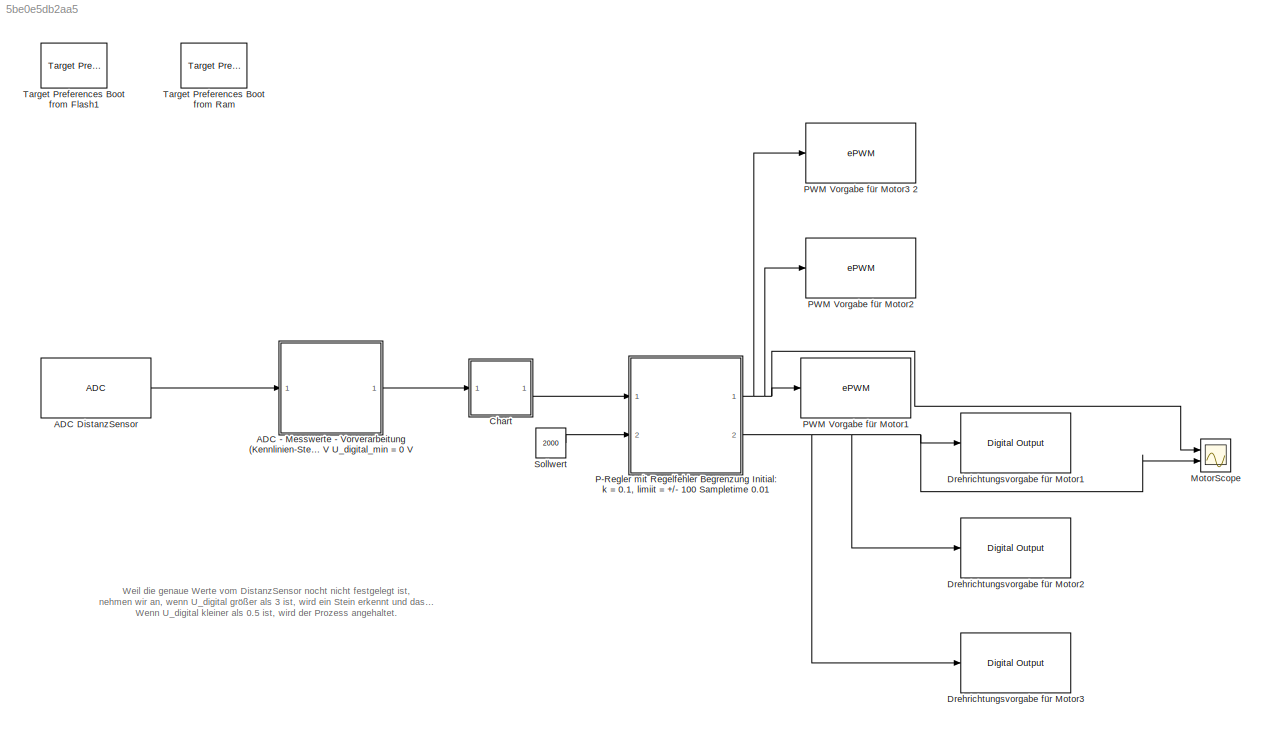
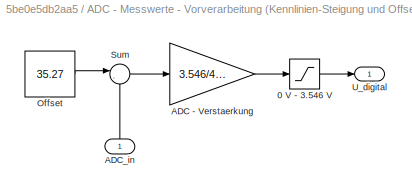
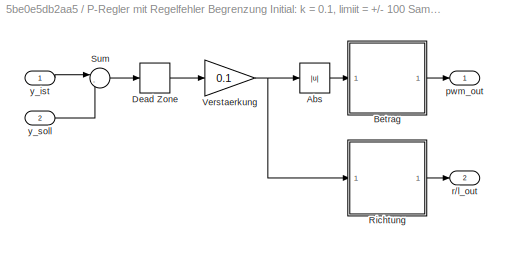
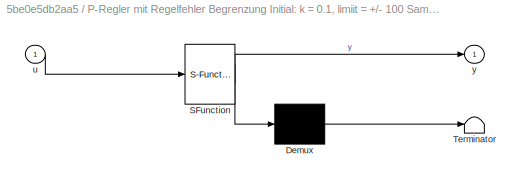
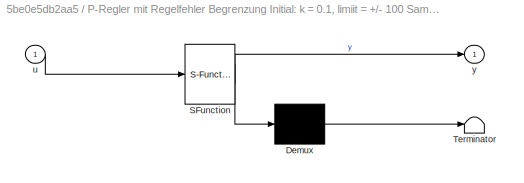
MODEL slx_5be0e5db2aa5
KIND model
BLOCK [SubSystem] ADC - Messwerte - Vorverarbeitung (Kennlinien-Steigung und Offset-Kompensation) U_digital = (ADC_in - Offset) * 3.546 V // 4096 mit U_digital_max = 3.546 V U_digital_min = 0 V
  FunctionWithSeparateData = off
  MaskHideContents = off
  MinAlgLoopOccurrences = off
  Opaque = off
  Ports = [1, 1]
  PropExecContextOutsideSubsystem = off
  RTWSystemCode = Auto
  RequestExecContextInheritance = off
BLOCK [Saturate] ADC - Messwerte - Vorverarbeitung (Kennlinien-Steigung und Offset-Kompensation) U_digital = (ADC_in - Offset) * 3.546 V // 4096 mit U_digital_max = 3.546 V U_digital_min = 0 V/0 V - 3.546 V
  InputPortMap = u0
  LowerLimit = 0
  Ports = [1, 1]
  UpperLimit = 3.546
BLOCK [Gain] ADC - Messwerte - Vorverarbeitung (Kennlinien-Steigung und Offset-Kompensation) U_digital = (ADC_in - Offset) * 3.546 V // 4096 mit U_digital_max = 3.546 V U_digital_min = 0 V/ADC - Verstaerkung
  Gain = 3.546/4096
  OutDataTypeStr = Inherit: Inherit via internal rule
  ParamDataTypeStr = Inherit: Inherit via internal rule
  SaturateOnIntegerOverflow = off
BLOCK [Inport] ADC - Messwerte - Vorverarbeitung (Kennlinien-Steigung und Offset-Kompensation) U_digital = (ADC_in - Offset) * 3.546 V // 4096 mit U_digital_max = 3.546 V U_digital_min = 0 V/ADC_in
  IconDisplay = Port number
BLOCK [Constant] ADC - Messwerte - Vorverarbeitung (Kennlinien-Steigung und Offset-Kompensation) U_digital = (ADC_in - Offset) * 3.546 V // 4096 mit U_digital_max = 3.546 V U_digital_min = 0 V/Offset
  Value = 35.27
BLOCK [Sum] ADC - Messwerte - Vorverarbeitung (Kennlinien-Steigung und Offset-Kompensation) U_digital = (ADC_in - Offset) * 3.546 V // 4096 mit U_digital_max = 3.546 V U_digital_min = 0 V/Sum
  IconShape = round
  InputSameDT = off
  Inputs = |-+
  OutDataTypeStr = Inherit: Inherit via internal rule
  Ports = [2, 1]
  SaturateOnIntegerOverflow = off
BLOCK [Outport] ADC - Messwerte - Vorverarbeitung (Kennlinien-Steigung und Offset-Kompensation) U_digital = (ADC_in - Offset) * 3.546 V // 4096 mit U_digital_max = 3.546 V U_digital_min = 0 V/U_digital
  IconDisplay = Port number
BLOCK [Reference] ADC DistanzSensor  REF=c280xlib/ADC
  Ports = [0, 1]
  SourceBlock = c280xlib/ADC
  SourceType = C280x/C2833x ADC
  Ts = 0.001
  UserDataPersistent = on
  c28xmultiPort = off
  chdma = 1
  conv0 = ADCINA0
  conv1 = ADCINA1
  conv10 = ADCINB2
  conv11 = ADCINB3
  conv12 = ADCINB4
  conv13 = ADCINB5
  conv14 = ADCINB6
  conv15 = ADCINB7
  conv2 = ADCINA2
  conv3 = ADCINA3
  conv4 = ADCINA4
  conv5 = ADCINA5
  conv6 = ADCINA6
  conv7 = ADCINA7
  conv8 = ADCINB0
  conv9 = ADCINB1
  convA0 = ADCINA0
  convA1 = ADCINA1
  convA2 = ADCINA2
  convA3 = ADCINA3
  convA4 = ADCINA4
  convA5 = ADCINA5
  convA6 = ADCINA6
  convA7 = ADCINA7
  convAB0 = ADCINA0 and ADCINB0
  convAB1 = ADCINA1 and ADCINB1
  convAB2 = ADCINA2 and ADCINB2
  convAB3 = ADCINA3 and ADCINB3
  convAB4 = ADCINA4 and ADCINB4
  convAB5 = ADCINA5 and ADCINB5
  convAB6 = ADCINA6 and ADCINB6
  convAB7 = ADCINA7 and ADCINB7
  convB0 = ADCINB0
  convB1 = ADCINB1
  convB2 = ADCINB2
  convB3 = ADCINB3
  convB4 = ADCINB4
  convB5 = ADCINB5
  convB6 = ADCINB6
  convB7 = ADCINB7
  dType = uint16
  endma = off
  numConversionsDouble = 1
  numConversionsSingle = 1
  postInterrupt = off
  sourceSOC = Software
  sourceSOC1 = Software
  sourceSOC2 = ePWMxB
  useMode = Sequential
  useModule = A
  xint2_ADCSOC = 31
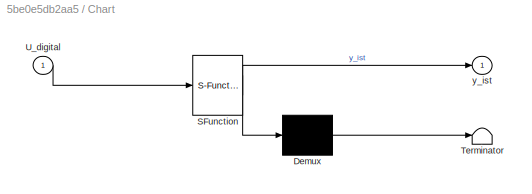
BLOCK [SubSystem] Chart
  ErrorFcn = Stateflow.Translate.translate
  FunctionWithSeparateData = off
  MaskHideContents = off
  MinAlgLoopOccurrences = off
  Opaque = off
  PermitHierarchicalResolution = ExplicitOnly
  Ports = [1, 1]
  PropExecContextOutsideSubsystem = off
  RTWSystemCode = Auto
  RequestExecContextInheritance = off
  SFBlockType = Chart
  TreatAsAtomicUnit = on
BLOCK [Demux] Chart/ Demux 
  Outputs = 1
  Ports = [1, 1]
BLOCK [S-Function] Chart/ SFunction 
  EnableBusSupport = off
  FunctionName = sf_sfun
  PortCounts = [1 2]
  Ports = [1, 2]
  Tag = Stateflow S-Function Sammeln 1
BLOCK [Terminator] Chart/ Terminator 
BLOCK [Inport] Chart/U_digital
  IconDisplay = Port number
BLOCK [Outport] Chart/y_ist
  IconDisplay = Port number
BLOCK [Reference] Drehrichtungsvorgabe für Motor1  REF=c2833xlib/Digital Output
  GPIO_BIT0_Toggle = off
  GPIO_BIT1_Toggle = off
  GPIO_BIT2_Toggle = off
  GPIO_BIT3_Toggle = off
  GPIO_BIT4_Toggle = off
  GPIO_BIT5_Toggle = off
  GPIO_BIT6_Toggle = off
  GPIO_BIT7_Toggle = off
  GPIO_Bit0 = off
  GPIO_Bit1 = off
  GPIO_Bit2 = off
  GPIO_Bit3 = off
  GPIO_Bit4 = off
  GPIO_Bit5 = on
  GPIO_Bit6 = off
  GPIO_Bit7 = off
  GPIO_Number = GPIO16~GPIO23
  Ports = [1]
  SourceBlock = c2833xlib/Digital Output
  SourceType = C2833x GPIO Digital Output
  UserDataPersistent = on
BLOCK [Reference] Drehrichtungsvorgabe für Motor2  REF=c2833xlib/Digital Output
  GPIO_BIT0_Toggle = off
  GPIO_BIT1_Toggle = off
  GPIO_BIT2_Toggle = off
  GPIO_BIT3_Toggle = off
  GPIO_BIT4_Toggle = off
  GPIO_BIT5_Toggle = off
  GPIO_BIT6_Toggle = off
  GPIO_BIT7_Toggle = off
  GPIO_Bit0 = off
  GPIO_Bit1 = off
  GPIO_Bit2 = off
  GPIO_Bit3 = off
  GPIO_Bit4 = off
  GPIO_Bit5 = on
  GPIO_Bit6 = off
  GPIO_Bit7 = off
  GPIO_Number = GPIO16~GPIO23
  Ports = [1]
  SourceBlock = c2833xlib/Digital Output
  SourceType = C2833x GPIO Digital Output
  UserDataPersistent = on
BLOCK [Reference] Drehrichtungsvorgabe für Motor3  REF=c2833xlib/Digital Output
  GPIO_BIT0_Toggle = off
  GPIO_BIT1_Toggle = off
  GPIO_BIT2_Toggle = off
  GPIO_BIT3_Toggle = off
  GPIO_BIT4_Toggle = off
  GPIO_BIT5_Toggle = off
  GPIO_BIT6_Toggle = off
  GPIO_BIT7_Toggle = off
  GPIO_Bit0 = off
  GPIO_Bit1 = off
  GPIO_Bit2 = off
  GPIO_Bit3 = off
  GPIO_Bit4 = off
  GPIO_Bit5 = on
  GPIO_Bit6 = off
  GPIO_Bit7 = off
  GPIO_Number = GPIO16~GPIO23
  Ports = [1]
  SourceBlock = c2833xlib/Digital Output
  SourceType = C2833x GPIO Digital Output
  UserDataPersistent = on
BLOCK [Scope] MotorScope
  DataFormat = StructureWithTime
  Floating = off
  NumInputPorts = 2
  Ports = [2]
  SampleTime = 0
  ShowLegends = off
  YMax = 100~5
  YMin = -5~-5
BLOCK [SubSystem] P-Regler mit Regelfehler Begrenzung Initial: k = 0.1, limiit = +//- 100 Sampletime 0.01
  FunctionWithSeparateData = off
  MaskHideContents = off
  MinAlgLoopOccurrences = off
  Opaque = off
  Ports = [2, 2]
  PropExecContextOutsideSubsystem = off
  RTWSystemCode = Auto
  RequestExecContextInheritance = off
BLOCK [Abs] P-Regler mit Regelfehler Begrenzung Initial: k = 0.1, limiit = +//- 100 Sampletime 0.01/Abs
  SampleTime = 0.01
  SaturateOnIntegerOverflow = off
BLOCK [SubSystem] P-Regler mit Regelfehler Begrenzung Initial: k = 0.1, limiit = +//- 100 Sampletime 0.01/Betrag
  ErrorFcn = Stateflow.Translate.translate
  FunctionWithSeparateData = off
  MaskHideContents = off
  MinAlgLoopOccurrences = off
  Opaque = off
  PermitHierarchicalResolution = ExplicitOnly
  Ports = [1, 1]
  PropExecContextOutsideSubsystem = off
  RTWSystemCode = Auto
  RequestExecContextInheritance = off
  SFBlockType = MATLAB Function
  SystemSampleTime = 0.01
  TreatAsAtomicUnit = on
BLOCK [Demux] P-Regler mit Regelfehler Begrenzung Initial: k = 0.1, limiit = +//- 100 Sampletime 0.01/Betrag/ Demux 
  Outputs = 1
  Ports = [1, 1]
BLOCK [S-Function] P-Regler mit Regelfehler Begrenzung Initial: k = 0.1, limiit = +//- 100 Sampletime 0.01/Betrag/ SFunction 
  EnableBusSupport = on
  FunctionName = sf_sfun
  PortCounts = [1 2]
  Ports = [1, 2]
  Tag = Stateflow S-Function Sammeln 4
BLOCK [Terminator] P-Regler mit Regelfehler Begrenzung Initial: k = 0.1, limiit = +//- 100 Sampletime 0.01/Betrag/ Terminator 
BLOCK [Inport] P-Regler mit Regelfehler Begrenzung Initial: k = 0.1, limiit = +//- 100 Sampletime 0.01/Betrag/u
  IconDisplay = Port number
BLOCK [Outport] P-Regler mit Regelfehler Begrenzung Initial: k = 0.1, limiit = +//- 100 Sampletime 0.01/Betrag/y
  IconDisplay = Port number
BLOCK [DeadZone] P-Regler mit Regelfehler Begrenzung Initial: k = 0.1, limiit = +//- 100 Sampletime 0.01/Dead Zone
  LowerValue = -5
  SampleTime = 0.01
  UpperValue = 5
BLOCK [SubSystem] P-Regler mit Regelfehler Begrenzung Initial: k = 0.1, limiit = +//- 100 Sampletime 0.01/Richtung
  ErrorFcn = Stateflow.Translate.translate
  FunctionWithSeparateData = off
  MaskHideContents = off
  MinAlgLoopOccurrences = off
  Opaque = off
  PermitHierarchicalResolution = ExplicitOnly
  Ports = [1, 1]
  PropExecContextOutsideSubsystem = off
  RTWSystemCode = Auto
  RequestExecContextInheritance = off
  SFBlockType = MATLAB Function
  SystemSampleTime = 0.01
  TreatAsAtomicUnit = on
BLOCK [Demux] P-Regler mit Regelfehler Begrenzung Initial: k = 0.1, limiit = +//- 100 Sampletime 0.01/Richtung/ Demux 
  Outputs = 1
  Ports = [1, 1]
BLOCK [S-Function] P-Regler mit Regelfehler Begrenzung Initial: k = 0.1, limiit = +//- 100 Sampletime 0.01/Richtung/ SFunction 
  EnableBusSupport = on
  FunctionName = sf_sfun
  PortCounts = [1 2]
  Ports = [1, 2]
  Tag = Stateflow S-Function Sammeln 6
BLOCK [Terminator] P-Regler mit Regelfehler Begrenzung Initial: k = 0.1, limiit = +//- 100 Sampletime 0.01/Richtung/ Terminator 
BLOCK [Inport] P-Regler mit Regelfehler Begrenzung Initial: k = 0.1, limiit = +//- 100 Sampletime 0.01/Richtung/u
  IconDisplay = Port number
BLOCK [Outport] P-Regler mit Regelfehler Begrenzung Initial: k = 0.1, limiit = +//- 100 Sampletime 0.01/Richtung/y
  IconDisplay = Port number
BLOCK [Sum] P-Regler mit Regelfehler Begrenzung Initial: k = 0.1, limiit = +//- 100 Sampletime 0.01/Sum
  IconShape = round
  InputSameDT = off
  Inputs = |-+
  OutDataTypeStr = Inherit: Inherit via internal rule
  Ports = [2, 1]
  SampleTime = 0.01
  SaturateOnIntegerOverflow = off
BLOCK [Gain] P-Regler mit Regelfehler Begrenzung Initial: k = 0.1, limiit = +//- 100 Sampletime 0.01/Verstaerkung
  Gain = 0.1
  OutDataTypeStr = Inherit: Inherit via internal rule
  ParamDataTypeStr = Inherit: Inherit via internal rule
  SampleTime = 0.01
  SaturateOnIntegerOverflow = off
BLOCK [Outport] P-Regler mit Regelfehler Begrenzung Initial: k = 0.1, limiit = +//- 100 Sampletime 0.01/pwm_out
  IconDisplay = Port number
BLOCK [Outport] P-Regler mit Regelfehler Begrenzung Initial: k = 0.1, limiit = +//- 100 Sampletime 0.01/r//l_out
  IconDisplay = Port number
  Port = 2
BLOCK [Inport] P-Regler mit Regelfehler Begrenzung Initial: k = 0.1, limiit = +//- 100 Sampletime 0.01/y_ist
  IconDisplay = Port number
BLOCK [Inport] P-Regler mit Regelfehler Begrenzung Initial: k = 0.1, limiit = +//- 100 Sampletime 0.01/y_soll
  IconDisplay = Port number
  Port = 2
BLOCK [Reference] PWM Vorgabe für Motor1   REF=c280xlib/ePWM
  CMPASource = Specify via dialog
  CMPAUnits = Clock cycles
  CMPAValue_clk = 32000
  CMPAValue_per = 50
  CMPBSource = Input port
  CMPBUnits = Percentages
  CMPBValue_clk = 32000
  CMPBValue_per = 0
  DBSource_ePWMxA = ePWMxA
  DBSource_ePWMxB = ePWMxA
  DBedgeDelay = Positive
  DBperiodSource = Specify via dialog
  DBpolarity = AH
  FEDperiod = 0
  HRPWM_CTLMode = Phase control mode
  HRPWM_EDGMode = Both edge
  HRPWM_LoadMode = CTR=ZERO
  HSclockPrescale = 1
  Ports = [1]
  REDperiod = 0
  SourceBlock = c280xlib/ePWM
  SourceType = C280x/C2833x ePWM
  adcrequestEventA = First event
  adcrequestEventB = First event
  adcstartEventA = CTR=Zero
  adcstartEventB = CTR=Zero
  adcstartModuleA = off
  adcstartModuleB = off
  checkMode = off
  chopperDuty = 12.5%
  chopperEnable = off
  chopperFirstwidth = 1
  chopperFrequency = 1
  clockPrescale = 1
  countingMode = Up
  ePWMxACSFenable = off
  ePWMxACSFvalue = Forcing Disable
  ePWMxALoadMode = Load on CTR=Zero
  ePWMxASFreload = Zero
  ePWMxAStatus = off
  ePWMxAValue = 0
  ePWMxAactionLogic1 = Do nothing
  ePWMxAactionLogic2 = Clear
  ePWMxAactionLogic3 = Set
  ePWMxAactionLogic4 = Do nothing
  ePWMxAactionLogic5 = Do nothing
  ePWMxAactionLogic6 = Do nothing
  ePWMxAforced = No action
  ePWMxBCSFenable = off
  ePWMxBCSFvalue = Forcing Disable
  ePWMxBLoadMode = Load on CTR=Zero
  ePWMxBSFreload = Zero
  ePWMxBStatus = on
  ePWMxBValue = 0
  ePWMxBactionLogic1 = Do nothing
  ePWMxBactionLogic2 = Set
  ePWMxBactionLogic3 = Do nothing
  ePWMxBactionLogic4 = Do nothing
  ePWMxBactionLogic5 = Clear
  ePWMxBactionLogic6 = Do nothing
  ePWMxBforced = No action
  enHRPWM = off
  enSFO = on
  enTzCbcIntr = off
  enTzOstIntr = off
  enableDBePWMxA = off
  enableDBePWMxB = off
  intEn = off
  intPrd = First event
  intSel = CTR=Zero
  periodUnits = Clock cycles
  phaseActive = 0
  phaseActiveEnable = Disable
  phaseDirection = Count down after sync
  synchronizationEnable = off
  synchronizationOption = Disable
  timerPeriod = -1
  timerPeriod_clk = 64000
  timerPeriod_sec = 0.0001
  timerSource = Specify via dialog
  tripZoneoption = OSHT
  tripZonesource = Specify via dialog
  tzselCBC1 = off
  tzselCBC2 = off
  tzselCBC3 = off
  tzselCBC4 = off
  tzselCBC5 = off
  tzselCBC6 = off
  tzselOSHT1 = off
  tzselOSHT2 = off
  tzselOSHT3 = off
  tzselOSHT4 = off
  tzselOSHT5 = off
  tzselOSHT6 = off
  useModule = ePWM2
BLOCK [Reference] PWM Vorgabe für Motor2   REF=c280xlib/ePWM
  CMPASource = Specify via dialog
  CMPAUnits = Clock cycles
  CMPAValue_clk = 32000
  CMPAValue_per = 50
  CMPBSource = Input port
  CMPBUnits = Percentages
  CMPBValue_clk = 32000
  CMPBValue_per = 0
  DBSource_ePWMxA = ePWMxA
  DBSource_ePWMxB = ePWMxA
  DBedgeDelay = Positive
  DBperiodSource = Specify via dialog
  DBpolarity = AH
  FEDperiod = 0
  HRPWM_CTLMode = Phase control mode
  HRPWM_EDGMode = Both edge
  HRPWM_LoadMode = CTR=ZERO
  HSclockPrescale = 1
  Ports = [1]
  REDperiod = 0
  SourceBlock = c280xlib/ePWM
  SourceType = C280x/C2833x ePWM
  adcrequestEventA = First event
  adcrequestEventB = First event
  adcstartEventA = CTR=Zero
  adcstartEventB = CTR=Zero
  adcstartModuleA = off
  adcstartModuleB = off
  checkMode = off
  chopperDuty = 12.5%
  chopperEnable = off
  chopperFirstwidth = 1
  chopperFrequency = 1
  clockPrescale = 1
  countingMode = Up
  ePWMxACSFenable = off
  ePWMxACSFvalue = Forcing Disable
  ePWMxALoadMode = Load on CTR=Zero
  ePWMxASFreload = Zero
  ePWMxAStatus = off
  ePWMxAValue = 0
  ePWMxAactionLogic1 = Do nothing
  ePWMxAactionLogic2 = Clear
  ePWMxAactionLogic3 = Set
  ePWMxAactionLogic4 = Do nothing
  ePWMxAactionLogic5 = Do nothing
  ePWMxAactionLogic6 = Do nothing
  ePWMxAforced = No action
  ePWMxBCSFenable = off
  ePWMxBCSFvalue = Forcing Disable
  ePWMxBLoadMode = Load on CTR=Zero
  ePWMxBSFreload = Zero
  ePWMxBStatus = on
  ePWMxBValue = 0
  ePWMxBactionLogic1 = Do nothing
  ePWMxBactionLogic2 = Set
  ePWMxBactionLogic3 = Do nothing
  ePWMxBactionLogic4 = Do nothing
  ePWMxBactionLogic5 = Clear
  ePWMxBactionLogic6 = Do nothing
  ePWMxBforced = No action
  enHRPWM = off
  enSFO = on
  enTzCbcIntr = off
  enTzOstIntr = off
  enableDBePWMxA = off
  enableDBePWMxB = off
  intEn = off
  intPrd = First event
  intSel = CTR=Zero
  periodUnits = Clock cycles
  phaseActive = 0
  phaseActiveEnable = Disable
  phaseDirection = Count down after sync
  synchronizationEnable = off
  synchronizationOption = Disable
  timerPeriod = -1
  timerPeriod_clk = 64000
  timerPeriod_sec = 0.0001
  timerSource = Specify via dialog
  tripZoneoption = OSHT
  tripZonesource = Specify via dialog
  tzselCBC1 = off
  tzselCBC2 = off
  tzselCBC3 = off
  tzselCBC4 = off
  tzselCBC5 = off
  tzselCBC6 = off
  tzselOSHT1 = off
  tzselOSHT2 = off
  tzselOSHT3 = off
  tzselOSHT4 = off
  tzselOSHT5 = off
  tzselOSHT6 = off
  useModule = ePWM2
BLOCK [Reference] PWM Vorgabe für Motor3 2  REF=c280xlib/ePWM
  CMPASource = Specify via dialog
  CMPAUnits = Clock cycles
  CMPAValue_clk = 32000
  CMPAValue_per = 50
  CMPBSource = Input port
  CMPBUnits = Percentages
  CMPBValue_clk = 32000
  CMPBValue_per = 0
  DBSource_ePWMxA = ePWMxA
  DBSource_ePWMxB = ePWMxA
  DBedgeDelay = Positive
  DBperiodSource = Specify via dialog
  DBpolarity = AH
  FEDperiod = 0
  HRPWM_CTLMode = Phase control mode
  HRPWM_EDGMode = Both edge
  HRPWM_LoadMode = CTR=ZERO
  HSclockPrescale = 1
  Ports = [1]
  REDperiod = 0
  SourceBlock = c280xlib/ePWM
  SourceType = C280x/C2833x ePWM
  adcrequestEventA = First event
  adcrequestEventB = First event
  adcstartEventA = CTR=Zero
  adcstartEventB = CTR=Zero
  adcstartModuleA = off
  adcstartModuleB = off
  checkMode = off
  chopperDuty = 12.5%
  chopperEnable = off
  chopperFirstwidth = 1
  chopperFrequency = 1
  clockPrescale = 1
  countingMode = Up
  ePWMxACSFenable = off
  ePWMxACSFvalue = Forcing Disable
  ePWMxALoadMode = Load on CTR=Zero
  ePWMxASFreload = Zero
  ePWMxAStatus = off
  ePWMxAValue = 0
  ePWMxAactionLogic1 = Do nothing
  ePWMxAactionLogic2 = Clear
  ePWMxAactionLogic3 = Set
  ePWMxAactionLogic4 = Do nothing
  ePWMxAactionLogic5 = Do nothing
  ePWMxAactionLogic6 = Do nothing
  ePWMxAforced = No action
  ePWMxBCSFenable = off
  ePWMxBCSFvalue = Forcing Disable
  ePWMxBLoadMode = Load on CTR=Zero
  ePWMxBSFreload = Zero
  ePWMxBStatus = on
  ePWMxBValue = 0
  ePWMxBactionLogic1 = Do nothing
  ePWMxBactionLogic2 = Set
  ePWMxBactionLogic3 = Do nothing
  ePWMxBactionLogic4 = Do nothing
  ePWMxBactionLogic5 = Clear
  ePWMxBactionLogic6 = Do nothing
  ePWMxBforced = No action
  enHRPWM = off
  enSFO = on
  enTzCbcIntr = off
  enTzOstIntr = off
  enableDBePWMxA = off
  enableDBePWMxB = off
  intEn = off
  intPrd = First event
  intSel = CTR=Zero
  periodUnits = Clock cycles
  phaseActive = 0
  phaseActiveEnable = Disable
  phaseDirection = Count down after sync
  synchronizationEnable = off
  synchronizationOption = Disable
  timerPeriod = -1
  timerPeriod_clk = 64000
  timerPeriod_sec = 0.0001
  timerSource = Specify via dialog
  tripZoneoption = OSHT
  tripZonesource = Specify via dialog
  tzselCBC1 = off
  tzselCBC2 = off
  tzselCBC3 = off
  tzselCBC4 = off
  tzselCBC5 = off
  tzselCBC6 = off
  tzselOSHT1 = off
  tzselOSHT2 = off
  tzselOSHT3 = off
  tzselOSHT4 = off
  tzselOSHT5 = off
  tzselOSHT6 = off
  useModule = ePWM2
BLOCK [Constant] Sollwert
  Value = 2000
BLOCK [Reference] Target Preferences Boot from Flash1  REF=idelinklib_tgtpref/Target Preferences
Template
  Commented = on
  Ports = []
  SourceBlock = idelinklib_tgtpref/Target Preferences\nTemplate
  SourceType = Target Preferences
  Tag = ccslinktgtpref_ccsv4
  UserDataPersistent = on
  library = off
BLOCK [Reference] Target Preferences Boot from Ram  REF=idelinklib_tgtpref/Target Preferences
Template
  Ports = []
  SourceBlock = idelinklib_tgtpref/Target Preferences\nTemplate
  SourceType = Target Preferences
  Tag = ccslinktgtpref_ccsv4
  UserDataPersistent = on
  library = off
ANNOTATION (root): Weil die genaue Werte vom DistanzSensor nocht nicht festgelegt ist, nehmen wir an, wenn U_digital größer als 3 ist, wird ein Stein erkennt und das Fahrzeug es Sammeln. Wenn U_digital kleiner als 0.5 ist, wird der Prozess angehaltet.
LINE ADC - Messwerte - Vorverarbeitung (Kennlinien-Steigung und Offset-Kompensation) U_digital = (ADC_in - Offset) * 3.546 V // 4096 mit U_digital_max = 3.546 V U_digital_min = 0 V/0 V - 3.546 V:1 -> ADC - Messwerte - Vorverarbeitung (Kennlinien-Steigung und Offset-Kompensation) U_digital = (ADC_in - Offset) * 3.546 V // 4096 mit U_digital_max = 3.546 V U_digital_min = 0 V/U_digital:1
LINE ADC - Messwerte - Vorverarbeitung (Kennlinien-Steigung und Offset-Kompensation) U_digital = (ADC_in - Offset) * 3.546 V // 4096 mit U_digital_max = 3.546 V U_digital_min = 0 V/ADC - Verstaerkung:1 -> ADC - Messwerte - Vorverarbeitung (Kennlinien-Steigung und Offset-Kompensation) U_digital = (ADC_in - Offset) * 3.546 V // 4096 mit U_digital_max = 3.546 V U_digital_min = 0 V/0 V - 3.546 V:1
LINE ADC - Messwerte - Vorverarbeitung (Kennlinien-Steigung und Offset-Kompensation) U_digital = (ADC_in - Offset) * 3.546 V // 4096 mit U_digital_max = 3.546 V U_digital_min = 0 V/ADC_in:1 -> ADC - Messwerte - Vorverarbeitung (Kennlinien-Steigung und Offset-Kompensation) U_digital = (ADC_in - Offset) * 3.546 V // 4096 mit U_digital_max = 3.546 V U_digital_min = 0 V/Sum:2
LINE ADC - Messwerte - Vorverarbeitung (Kennlinien-Steigung und Offset-Kompensation) U_digital = (ADC_in - Offset) * 3.546 V // 4096 mit U_digital_max = 3.546 V U_digital_min = 0 V/Offset:1 -> ADC - Messwerte - Vorverarbeitung (Kennlinien-Steigung und Offset-Kompensation) U_digital = (ADC_in - Offset) * 3.546 V // 4096 mit U_digital_max = 3.546 V U_digital_min = 0 V/Sum:1
LINE ADC - Messwerte - Vorverarbeitung (Kennlinien-Steigung und Offset-Kompensation) U_digital = (ADC_in - Offset) * 3.546 V // 4096 mit U_digital_max = 3.546 V U_digital_min = 0 V/Sum:1 -> ADC - Messwerte - Vorverarbeitung (Kennlinien-Steigung und Offset-Kompensation) U_digital = (ADC_in - Offset) * 3.546 V // 4096 mit U_digital_max = 3.546 V U_digital_min = 0 V/ADC - Verstaerkung:1
LINE ADC - Messwerte - Vorverarbeitung (Kennlinien-Steigung und Offset-Kompensation) U_digital = (ADC_in - Offset) * 3.546 V // 4096 mit U_digital_max = 3.546 V U_digital_min = 0 V:1 -> Chart:1
LINE ADC DistanzSensor:1 -> ADC - Messwerte - Vorverarbeitung (Kennlinien-Steigung und Offset-Kompensation) U_digital = (ADC_in - Offset) * 3.546 V // 4096 mit U_digital_max = 3.546 V U_digital_min = 0 V:1
LINE Chart:1 -> P-Regler mit Regelfehler Begrenzung Initial: k = 0.1, limiit = +//- 100 Sampletime 0.01:1
LINE P-Regler mit Regelfehler Begrenzung Initial: k = 0.1, limiit = +//- 100 Sampletime 0.01/Abs:1 -> P-Regler mit Regelfehler Begrenzung Initial: k = 0.1, limiit = +//- 100 Sampletime 0.01/Betrag:1
LINE P-Regler mit Regelfehler Begrenzung Initial: k = 0.1, limiit = +//- 100 Sampletime 0.01/Betrag:1 -> P-Regler mit Regelfehler Begrenzung Initial: k = 0.1, limiit = +//- 100 Sampletime 0.01/pwm_out:1
LINE P-Regler mit Regelfehler Begrenzung Initial: k = 0.1, limiit = +//- 100 Sampletime 0.01/Dead Zone:1 -> P-Regler mit Regelfehler Begrenzung Initial: k = 0.1, limiit = +//- 100 Sampletime 0.01/Verstaerkung:1
LINE P-Regler mit Regelfehler Begrenzung Initial: k = 0.1, limiit = +//- 100 Sampletime 0.01/Richtung:1 -> P-Regler mit Regelfehler Begrenzung Initial: k = 0.1, limiit = +//- 100 Sampletime 0.01/r//l_out:1
LINE P-Regler mit Regelfehler Begrenzung Initial: k = 0.1, limiit = +//- 100 Sampletime 0.01/Sum:1 -> P-Regler mit Regelfehler Begrenzung Initial: k = 0.1, limiit = +//- 100 Sampletime 0.01/Dead Zone:1
NET P-Regler mit Regelfehler Begrenzung Initial: k = 0.1, limiit = +//- 100 Sampletime 0.01/Verstaerkung:1 -> P-Regler mit Regelfehler Begrenzung Initial: k = 0.1, limiit = +//- 100 Sampletime 0.01/Abs:1, P-Regler mit Regelfehler Begrenzung Initial: k = 0.1, limiit = +//- 100 Sampletime 0.01/Richtung:1
LINE P-Regler mit Regelfehler Begrenzung Initial: k = 0.1, limiit = +//- 100 Sampletime 0.01/y_ist:1 -> P-Regler mit Regelfehler Begrenzung Initial: k = 0.1, limiit = +//- 100 Sampletime 0.01/Sum:1
LINE P-Regler mit Regelfehler Begrenzung Initial: k = 0.1, limiit = +//- 100 Sampletime 0.01/y_soll:1 -> P-Regler mit Regelfehler Begrenzung Initial: k = 0.1, limiit = +//- 100 Sampletime 0.01/Sum:2
NET P-Regler mit Regelfehler Begrenzung Initial: k = 0.1, limiit = +//- 100 Sampletime 0.01:1 -> MotorScope:1, PWM Vorgabe für Motor1 :1, PWM Vorgabe für Motor2 :1, PWM Vorgabe für Motor3 2:1
NET P-Regler mit Regelfehler Begrenzung Initial: k = 0.1, limiit = +//- 100 Sampletime 0.01:2 -> Drehrichtungsvorgabe für Motor1:1, Drehrichtungsvorgabe für Motor2:1, Drehrichtungsvorgabe für Motor3:1, MotorScope:2
LINE Sollwert:1 -> P-Regler mit Regelfehler Begrenzung Initial: k = 0.1, limiit = +//- 100 Sampletime 0.01:2
note: NET lines group one-source signal fan-out (src -> all destinations, sorted); 1:1 wires keep LINE
